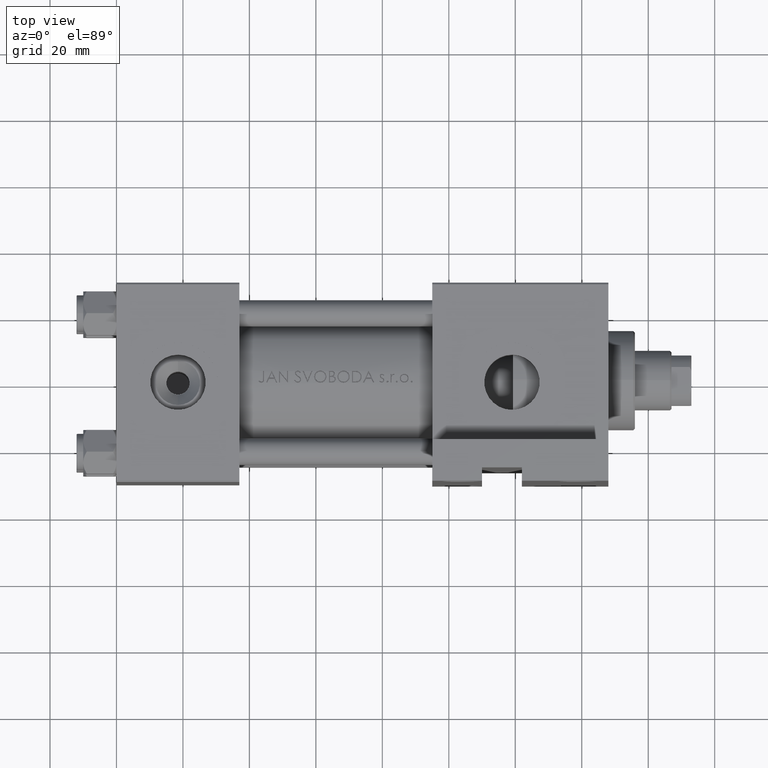
[diagram: clean part render]
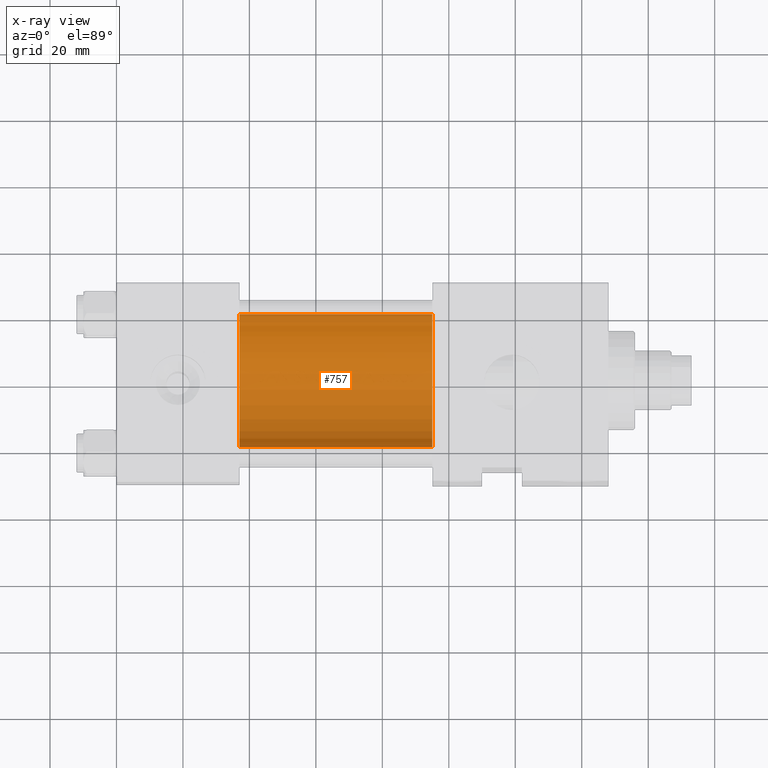
[diagram: x-ray — body ghosted, one internal face saturated and labeled with its STEP entity id]
A machine part, top view, then the same camera in x-ray: the body is ghosted and one INTERNAL B-rep face — a face not visible from any outside direction — is saturated and labeled: STEP entity #757.
In plain terms, the highlighted cylindrical surface (partial cylindrical patch) has radius 20 mm, axis along (-1, -0, 0).
Its self-contained STEP definition (entity closure, byte-faithful):
#757 = ADVANCED_FACE ( 'NONE', ( #9673 ), #44358, .F. ) ;
#1236 = EDGE_LOOP ( 'NONE', ( #36899, #15998, #32356, #3364 ) ) ;
#1548 = EDGE_CURVE ( 'NONE', #39543, #49335, #2578, .T. ) ;
#2578 = CIRCLE ( 'NONE', #18127, 20.00000000000000000 ) ;
#3364 = ORIENTED_EDGE ( 'NONE', *, *, #9708, .F. ) ;
#3632 = DIRECTION ( 'NONE',  ( 0.000000000000000000, 0.000000000000000000, -1.000000000000000000 ) ) ;
#4418 = DIRECTION ( 'NONE',  ( -1.000000000000000000, -0.000000000000000000, -0.000000000000000000 ) ) ;
#4835 = CIRCLE ( 'NONE', #33504, 20.00000000000000000 ) ;
#5333 = CARTESIAN_POINT ( 'NONE',  ( 95.00000000000000000, -1.224646799147354686E-16, 1.000000000000000888 ) ) ;
#6234 = VECTOR ( 'NONE', #6298, 1000.000000000000000 ) ;
#6298 = DIRECTION ( 'NONE',  ( -1.000000000000000000, -0.000000000000000000, -0.000000000000000000 ) ) ;
#7237 = EDGE_CURVE ( 'NONE', #39543, #9298, #39814, .T. ) ;
#8679 = DIRECTION ( 'NONE',  ( 0.000000000000000000, 0.000000000000000000, 1.000000000000000000 ) ) ;
#9298 = VERTEX_POINT ( 'NONE', #24806 ) ;
#9673 = FACE_OUTER_BOUND ( 'NONE', #1236, .T. ) ;
#9708 = EDGE_CURVE ( 'NONE', #9298, #38418, #4835, .T. ) ;
#10393 = CARTESIAN_POINT ( 'NONE',  ( 95.00000000000000000, -1.224646799147354686E-16, 21.00000000000000000 ) ) ;
#10745 = AXIS2_PLACEMENT_3D ( 'NONE', #5333, #17122, #8679 ) ;
#12406 = CARTESIAN_POINT ( 'NONE',  ( 95.00000000000000000, -1.224646799147354686E-16, 21.00000000000000000 ) ) ;
#13470 = CARTESIAN_POINT ( 'NONE',  ( 95.00000000000000000, 2.326828918379970576E-15, -19.00000000000000000 ) ) ;
#15998 = ORIENTED_EDGE ( 'NONE', *, *, #1548, .T. ) ;
#17122 = DIRECTION ( 'NONE',  ( -1.000000000000000000, -0.000000000000000000, -0.000000000000000000 ) ) ;
#17306 = DIRECTION ( 'NONE',  ( 0.000000000000000000, 0.000000000000000000, -1.000000000000000000 ) ) ;
#17579 = LINE ( 'NONE', #10393, #6234 ) ;
#18127 = AXIS2_PLACEMENT_3D ( 'NONE', #46507, #42652, #3632 ) ;
#21464 = VECTOR ( 'NONE', #4418, 1000.000000000000000 ) ;
#24806 = CARTESIAN_POINT ( 'NONE',  ( 37.00000000000000000, 2.326828918379970576E-15, -19.00000000000000000 ) ) ;
#28259 = CARTESIAN_POINT ( 'NONE',  ( 95.00000000000000000, 2.326828918379970576E-15, -19.00000000000000000 ) ) ;
#32356 = ORIENTED_EDGE ( 'NONE', *, *, #37946, .T. ) ;
#32970 = DIRECTION ( 'NONE',  ( 1.000000000000000000, 0.000000000000000000, 0.000000000000000000 ) ) ;
#33504 = AXIS2_PLACEMENT_3D ( 'NONE', #37316, #32970, #17306 ) ;
#36899 = ORIENTED_EDGE ( 'NONE', *, *, #7237, .F. ) ;
#37316 = CARTESIAN_POINT ( 'NONE',  ( 37.00000000000000000, -1.224646799147354686E-16, 1.000000000000000888 ) ) ;
#37888 = CARTESIAN_POINT ( 'NONE',  ( 37.00000000000000000, -1.224646799147354686E-16, 21.00000000000000000 ) ) ;
#37946 = EDGE_CURVE ( 'NONE', #49335, #38418, #17579, .T. ) ;
#38418 = VERTEX_POINT ( 'NONE', #37888 ) ;
#39543 = VERTEX_POINT ( 'NONE', #13470 ) ;
#39814 = LINE ( 'NONE', #28259, #21464 ) ;
#42652 = DIRECTION ( 'NONE',  ( 1.000000000000000000, 0.000000000000000000, 0.000000000000000000 ) ) ;
#44358 = CYLINDRICAL_SURFACE ( 'NONE', #10745, 20.00000000000000000 ) ;
#46507 = CARTESIAN_POINT ( 'NONE',  ( 95.00000000000000000, -1.224646799147354686E-16, 1.000000000000000888 ) ) ;
#49335 = VERTEX_POINT ( 'NONE', #12406 ) ;